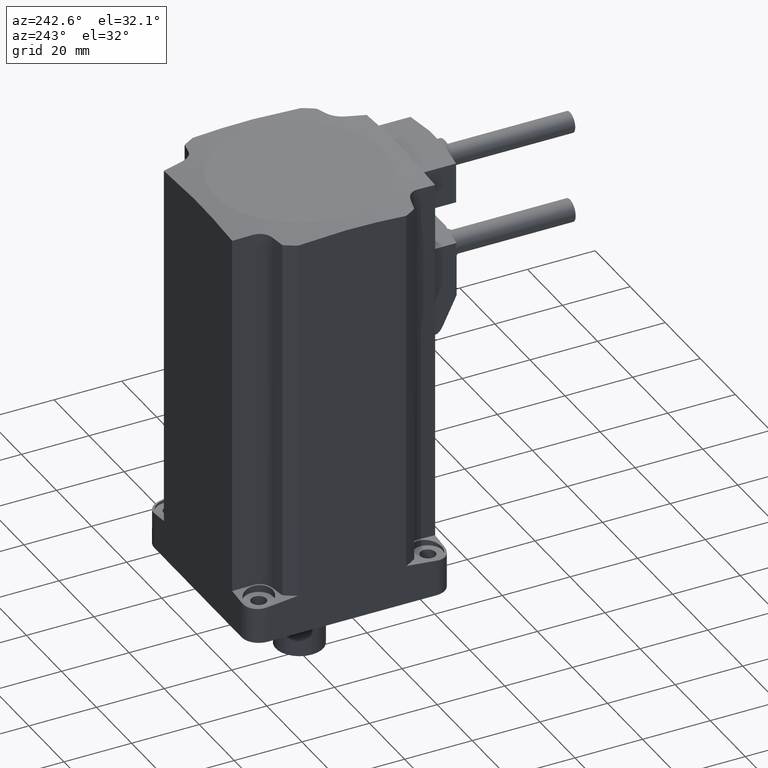
[diagram: clean part render]
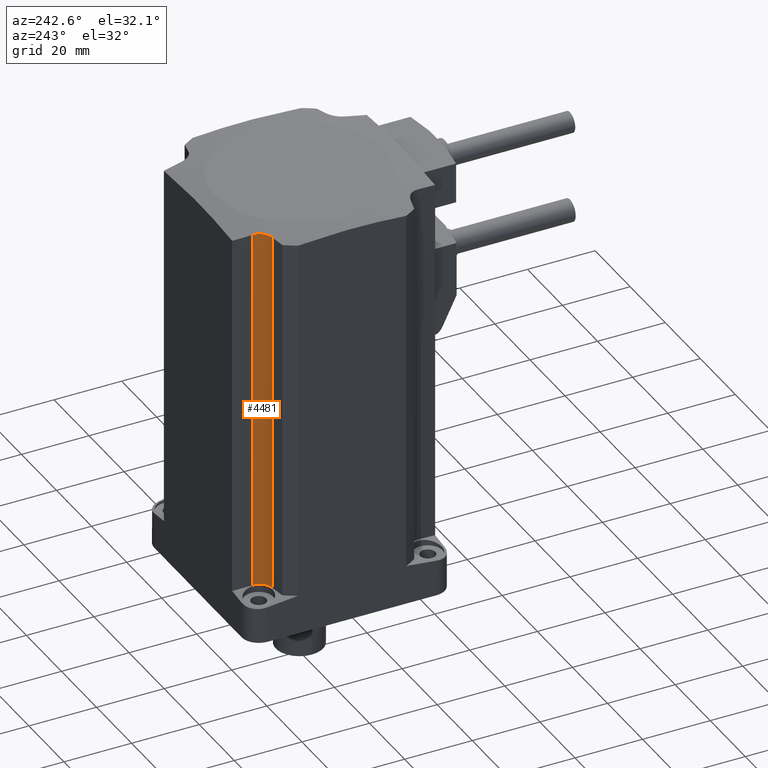
[diagram: same view with one face highlighted and labeled with its STEP entity id]
A machine part, auxiliary view. The second image highlights one B-rep face of the part: STEP entity #4481.
In plain terms, the highlighted cylindrical surface (edge-blend (fillet) strip) has radius 4.7 mm, axis along (0, 0, 1).
Its self-contained STEP definition (entity closure, byte-faithful):
#14 = CARTESIAN_POINT ( 'NONE',  ( -20.97741659779572387, 22.55803693794559095, 12.16540341905703038 ) ) ;
#18 = CARTESIAN_POINT ( 'NONE',  ( -20.55656362480208799, 23.39850088306306475, 120.6291678550469442 ) ) ;
#354 = CARTESIAN_POINT ( 'NONE',  ( -22.82487845400468629, 20.82712197546238997, 120.6675132281988851 ) ) ;
#400 = CARTESIAN_POINT ( 'NONE',  ( -23.03566135442276419, 20.70457624287000442, 12.13949558161042042 ) ) ;
#719 = CARTESIAN_POINT ( 'NONE',  ( -22.42897105119594414, 21.05860011717050995, 12.17146103077619124 ) ) ;
#739 = CARTESIAN_POINT ( 'NONE',  ( -20.66108670098679667, 23.17850873547047641, 12.12692315554068934 ) ) ;
#830 = ORIENTED_EDGE ( 'NONE', *, *, #1637, .F. ) ;
#848 = CARTESIAN_POINT ( 'NONE',  ( -20.35169063421638569, 24.30485969763782705, 120.5403774523731926 ) ) ;
#1069 = CARTESIAN_POINT ( 'NONE',  ( -23.92293928564301808, 20.42507484021993491, 120.5794343978509886 ) ) ;
#1155 = CARTESIAN_POINT ( 'NONE',  ( -23.69454741338578785, 20.47884444398295756, 120.6015372757398154 ) ) ;
#1205 = CARTESIAN_POINT ( 'NONE',  ( -23.92293928564301808, 20.42507484021993491, 120.5794343978509886 ) ) ;
#1438 = CARTESIAN_POINT ( 'NONE',  ( -23.92293928564298966, 20.42507484021992425, 12.99799999999999578 ) ) ;
#1578 = CARTESIAN_POINT ( 'NONE',  ( -21.23649710011371283, 22.17509052203496012, 120.6979275409707952 ) ) ;
#1625 = B_SPLINE_CURVE_WITH_KNOTS ( 'NONE', 3,
 ( #3082, #2700, #400, #719, #2277, #1898, #4576, #4243, #4194, #14, #2255, #739, #3440, #2329, #1947, #3488 ),
 .UNSPECIFIED., .F., .F.,
 ( 4, 2, 2, 2, 2, 2, 2, 4 ),
 ( 1.876390332415650686E-17, 0.001394041963325831374, 0.002091062944988734268, 0.002788083926651638029, 0.003485104908314541356, 0.004182125889977445117, 0.004879146871640349312, 0.005576167853303252639 ),
 .UNSPECIFIED. ) ;
#1637 = EDGE_CURVE ( 'NONE', #2090, #2756, #1625, .T. ) ;
#1893 = FACE_OUTER_BOUND ( 'NONE', #2543, .T. ) ;
#1898 = CARTESIAN_POINT ( 'NONE',  ( -21.87220777331646815, 21.48417546644951770, 12.18805610895370073 ) ) ;
#1947 = CARTESIAN_POINT ( 'NONE',  ( -20.38634962397570405, 24.07309971169042839, 12.04847599071671027 ) ) ;
#1958 = CARTESIAN_POINT ( 'NONE',  ( -23.92293928564299321, 20.42507484021992425, 12.06257987070025273 ) ) ;
#2084 = DIRECTION ( 'NONE',  ( 0.0000000000000000000, -0.0000000000000000000, -1.000000000000000000 ) ) ;
#2090 = VERTEX_POINT ( 'NONE', #1958 ) ;
#2108 = CARTESIAN_POINT ( 'NONE',  ( -20.35169063421637503, 24.30485969763780574, 12.99799999999999578 ) ) ;
#2249 = CARTESIAN_POINT ( 'NONE',  ( -20.35169063421638569, 24.30485969763782705, 120.5403774523731926 ) ) ;
#2255 = CARTESIAN_POINT ( 'NONE',  ( -20.86192470133726928, 22.75939029152590720, 12.15454115494642551 ) ) ;
#2277 = CARTESIAN_POINT ( 'NONE',  ( -22.23464562577673931, 21.19251768894696042, 12.17910258005039204 ) ) ;
#2284 = CARTESIAN_POINT ( 'NONE',  ( -23.03641295736892047, 20.72340720222173260, 120.6538719291431505 ) ) ;
#2329 = CARTESIAN_POINT ( 'NONE',  ( -20.43803273239074514, 23.84533865354023874, 12.07076285551995198 ) ) ;
#2332 = AXIS2_PLACEMENT_3D ( 'NONE', #4122, #3410, #3438 ) ;
#2414 = EDGE_CURVE ( 'NONE', #4323, #4573, #4735, .T. ) ;
#2543 = EDGE_LOOP ( 'NONE', ( #830, #2571, #4715, #4270 ) ) ;
#2571 = ORIENTED_EDGE ( 'NONE', *, *, #3957, .F. ) ;
#2638 = DIRECTION ( 'NONE',  ( -0.0000000000000000000, -0.0000000000000000000, -1.000000000000000000 ) ) ;
#2659 = CARTESIAN_POINT ( 'NONE',  ( -21.69613713504932662, 21.64903842600817185, 120.7063283036799248 ) ) ;
#2700 = CARTESIAN_POINT ( 'NONE',  ( -23.46618794479135772, 20.53260641905011141, 12.10678249057875178 ) ) ;
#2709 = CARTESIAN_POINT ( 'NONE',  ( -20.42100663694050766, 23.84135294430140561, 120.5902821601296040 ) ) ;
#2734 = CARTESIAN_POINT ( 'NONE',  ( -22.23244900975500826, 21.19407304504679956, 120.6960382266543519 ) ) ;
#2756 = VERTEX_POINT ( 'NONE', #4579 ) ;
#2942 = VECTOR ( 'NONE', #2084, 1000.000000000000000 ) ;
#3082 = CARTESIAN_POINT ( 'NONE',  ( -23.92293928564299321, 20.42507484021992425, 12.06257987070025273 ) ) ;
#3110 = VECTOR ( 'NONE', #2638, 1000.000000000000000 ) ;
#3112 = CARTESIAN_POINT ( 'NONE',  ( -21.86917628751913156, 21.48683029851775217, 120.7049582805303061 ) ) ;
#3342 = EDGE_CURVE ( 'NONE', #4323, #2756, #4109, .T. ) ;
#3410 = DIRECTION ( 'NONE',  ( 0.0000000000000000000, 0.0000000000000000000, 1.000000000000000000 ) ) ;
#3438 = DIRECTION ( 'NONE',  ( 1.000000000000000000, 0.0000000000000000000, 0.0000000000000000000 ) ) ;
#3440 = CARTESIAN_POINT ( 'NONE',  ( -20.57533018179428552, 23.39778741248049698, 12.11002781367166214 ) ) ;
#3488 = CARTESIAN_POINT ( 'NONE',  ( -20.35169063421636437, 24.30485969763781284, 12.02352292523267607 ) ) ;
#3491 = CARTESIAN_POINT ( 'NONE',  ( -23.47157160379060770, 20.54928919500959239, 120.6208403009884336 ) ) ;
#3778 = LINE ( 'NONE', #1438, #3110 ) ;
#3792 = CYLINDRICAL_SURFACE ( 'NONE', #2332, 4.699999999999999289 ) ;
#3957 = EDGE_CURVE ( 'NONE', #4573, #2090, #3778, .T. ) ;
#4109 = LINE ( 'NONE', #2108, #2942 ) ;
#4122 = CARTESIAN_POINT ( 'NONE',  ( -25.00000000000000355, 24.99999999999999645, 12.99799999999999578 ) ) ;
#4194 = CARTESIAN_POINT ( 'NONE',  ( -21.23884957481085678, 22.17190730292887935, 12.18117810222954134 ) ) ;
#4243 = CARTESIAN_POINT ( 'NONE',  ( -21.38607343874795674, 21.98603163174715291, 12.18606732244063551 ) ) ;
#4270 = ORIENTED_EDGE ( 'NONE', *, *, #3342, .T. ) ;
#4323 = VERTEX_POINT ( 'NONE', #2249 ) ;
#4481 = ADVANCED_FACE ( 'NONE', ( #1893 ), #3792, .F. ) ;
#4573 = VERTEX_POINT ( 'NONE', #1069 ) ;
#4576 = CARTESIAN_POINT ( 'NONE',  ( -21.70244698734622446, 21.64282639059434743, 12.18946140259275168 ) ) ;
#4579 = CARTESIAN_POINT ( 'NONE',  ( -20.35169063421636437, 24.30485969763781284, 12.02352292523267607 ) ) ;
#4582 = CARTESIAN_POINT ( 'NONE',  ( -21.38045713578196683, 21.99278155850656802, 120.7027784510230362 ) ) ;
#4607 = CARTESIAN_POINT ( 'NONE',  ( -20.85877378091042900, 22.76505548999077888, 120.6710775955815791 ) ) ;
#4661 = CARTESIAN_POINT ( 'NONE',  ( -22.42362660573847322, 21.06218780528282508, 120.6885377898399838 ) ) ;
#4715 = ORIENTED_EDGE ( 'NONE', *, *, #2414, .F. ) ;
#4735 = B_SPLINE_CURVE_WITH_KNOTS ( 'NONE', 3,
 ( #848, #2709, #18, #4607, #5025, #1578, #4582, #2659, #3112, #2734, #4661, #354, #2284, #3491, #1155, #1205 ),
 .UNSPECIFIED., .F., .F.,
 ( 4, 2, 2, 2, 2, 2, 2, 4 ),
 ( 1.430489624538199204E-17, 0.001394060232305795611, 0.002091090348458688863, 0.002788120464611581681, 0.003485150580764474933, 0.004182180696917367317, 0.004879210813070260569, 0.005576240929223153821 ),
 .UNSPECIFIED. ) ;
#5025 = CARTESIAN_POINT ( 'NONE',  ( -20.97604258345822359, 22.56036184117240495, 120.6821376499810867 ) ) ;